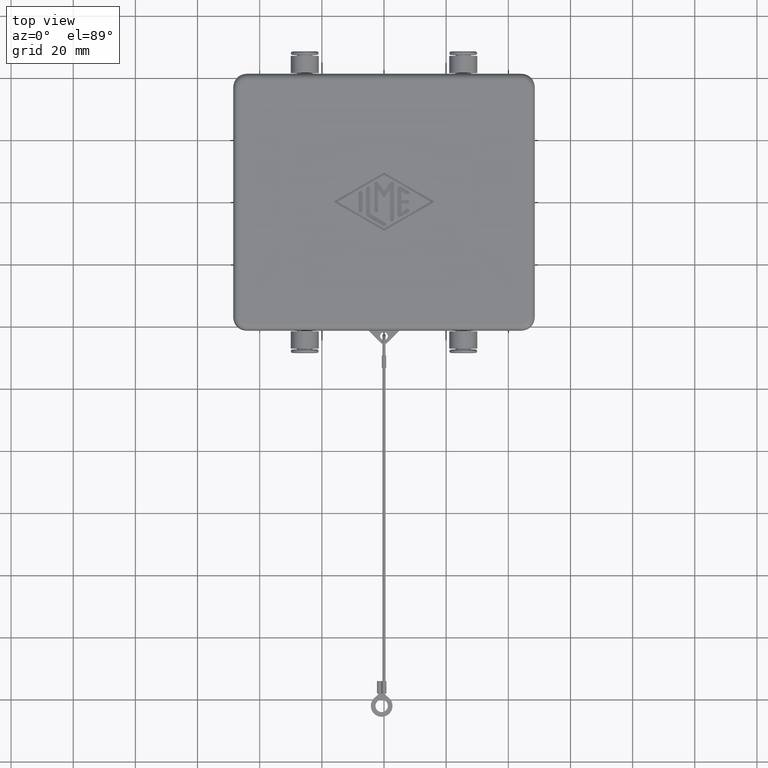
[diagram: clean part render]
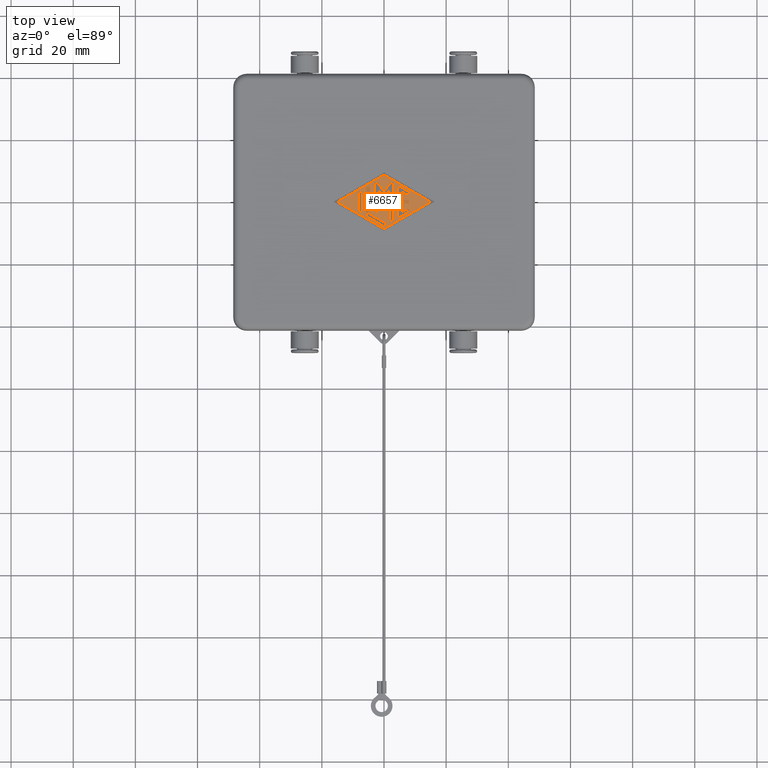
[diagram: same view with one face highlighted and labeled with its STEP entity id]
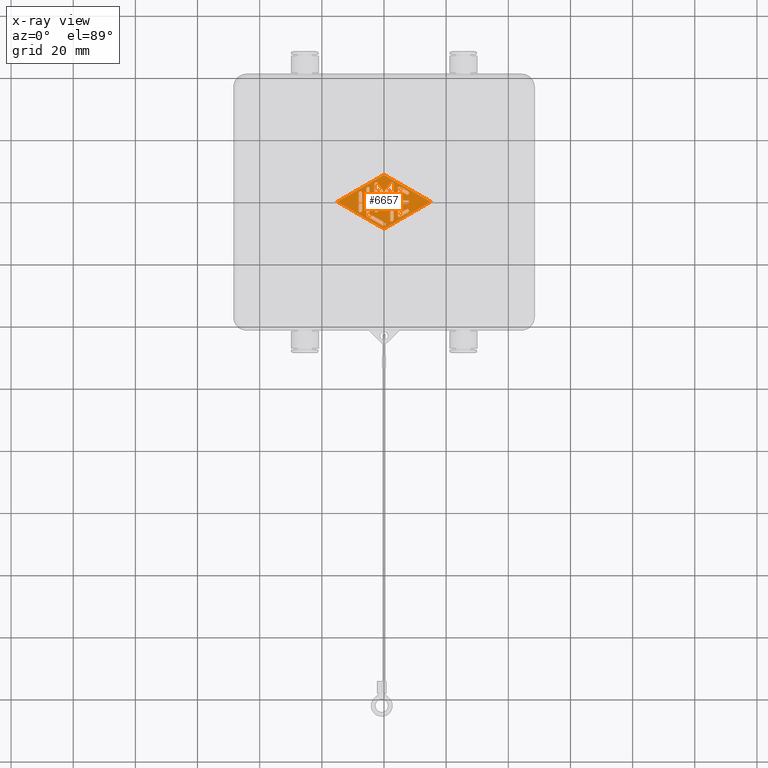
[diagram: x-ray of the same camera — body ghosted, the highlighted face saturated]
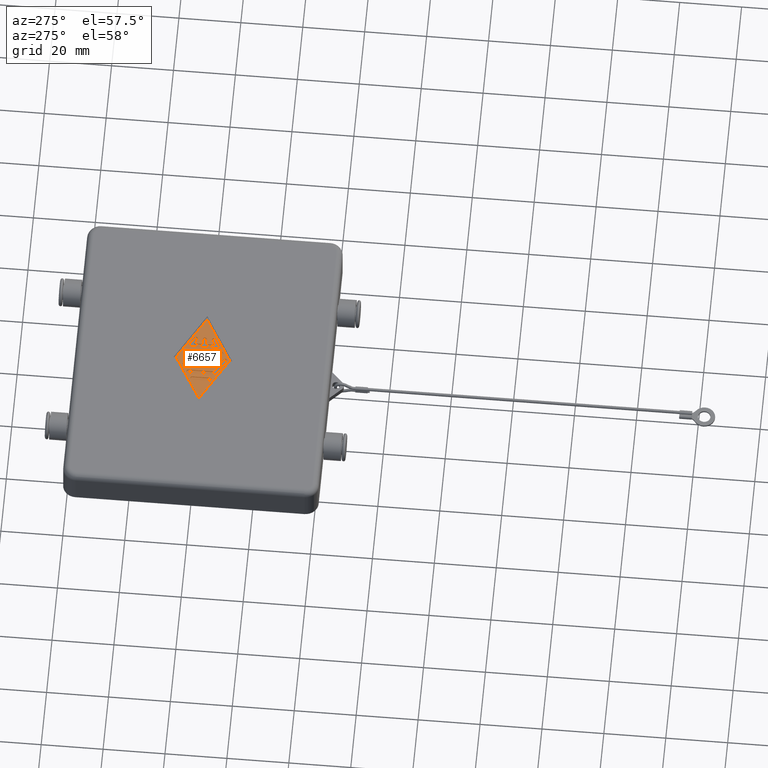
[diagram: same view with one face highlighted and labeled with its STEP entity id]
A machine part, top view. The second image highlights one B-rep face of the part: STEP entity #6657.
The next image is the same camera in x-ray: the body ghosted, the highlighted face saturated — about 0% of this face is hidden behind the body in this view.
A second angle (auxiliary view) of the same face is appended — the face is thin or edge-on in the first view.
In plain terms, the highlighted planar face has unit normal (0, 0, 1).
Its self-contained STEP definition (entity closure, byte-faithful):
#1799=CARTESIAN_POINT('',(4.374999999999995,4.325721487528326,12.000000000000002));
#1800=VERTEX_POINT('',#1799);
#1807=CARTESIAN_POINT('',(4.374999999999995,-4.325721487528320,12.000000000000002));
#1808=VERTEX_POINT('',#1807);
#1809=CARTESIAN_POINT('',(4.374999999999995,-4.325721487528320,12.000000000000002));
#1810=DIRECTION('',(0.0,1.0,0.0));
#1811=VECTOR('',#1810,8.651442975056646);
#1812=LINE('',#1809,#1811);
#1813=EDGE_CURVE('',#1808,#1800,#1812,.T.);
#1839=CARTESIAN_POINT('',(5.312326533430989,-4.867087478808698,12.000000000000002));
#1840=VERTEX_POINT('',#1839);
#1841=CARTESIAN_POINT('',(5.000000000000001,-4.325721487528320,12.000000000000002));
#1842=DIRECTION('',(0.0,0.0,-1.0));
#1843=DIRECTION('',(1.0,0.0,0.0));
#1844=AXIS2_PLACEMENT_3D('',#1841,#1842,#1843);
#1845=CIRCLE('',#1844,0.625000000000000);
#1846=EDGE_CURVE('',#1840,#1808,#1845,.T.);
#1871=CARTESIAN_POINT('',(7.812326533430980,-3.424779786501008,12.000000000000002));
#1872=VERTEX_POINT('',#1871);
#1873=CARTESIAN_POINT('',(7.812326533430980,-3.424779786501008,12.000000000000002));
#1874=DIRECTION('',(-0.866185586048600,-0.499722453489578,0.0));
#1875=VECTOR('',#1874,2.886217503808382);
#1876=LINE('',#1873,#1875);
#1877=EDGE_CURVE('',#1872,#1840,#1876,.T.);
#1903=CARTESIAN_POINT('',(7.187673466569009,-2.342047803940258,12.000000000000002));
#1904=VERTEX_POINT('',#1903);
#1905=CARTESIAN_POINT('',(7.499999999999995,-2.883413795220633,12.000000000000002));
#1906=DIRECTION('',(0.0,0.0,-1.000000000000000));
#1907=DIRECTION('',(-0.499722453489577,0.866185586048601,0.0));
#1908=AXIS2_PLACEMENT_3D('',#1905,#1906,#1907);
#1909=CIRCLE('',#1908,0.625000000000002);
#1910=EDGE_CURVE('',#1904,#1872,#1909,.T.);
#1935=CARTESIAN_POINT('',(5.624999999999995,-3.243590188499308,12.000000000000002));
#1936=VERTEX_POINT('',#1935);
#1937=CARTESIAN_POINT('',(5.624999999999995,-3.243590188499308,12.000000000000002));
#1938=DIRECTION('',(0.866185586048600,0.499722453489578,0.0));
#1939=VECTOR('',#1938,1.804086204779372);
#1940=LINE('',#1937,#1939);
#1941=EDGE_CURVE('',#1936,#1904,#1940,.T.);
#1966=CARTESIAN_POINT('',(5.624999999999995,-0.625000000000001,12.000000000000002));
#1967=VERTEX_POINT('',#1966);
#1968=CARTESIAN_POINT('',(5.624999999999995,-0.625000000000001,12.000000000000002));
#1969=DIRECTION('',(0.0,-1.0,0.0));
#1970=VECTOR('',#1969,2.618590188499306);
#1971=LINE('',#1968,#1970);
#1972=EDGE_CURVE('',#1967,#1936,#1971,.T.);
#1997=CARTESIAN_POINT('',(7.499999999999995,-0.625000000000001,12.000000000000002));
#1998=VERTEX_POINT('',#1997);
#1999=CARTESIAN_POINT('',(7.499999999999995,-0.625000000000001,12.000000000000002));
#2000=DIRECTION('',(-1.0,0.0,0.0));
#2001=VECTOR('',#2000,1.875000000000000);
#2002=LINE('',#1999,#2001);
#2003=EDGE_CURVE('',#1998,#1967,#2002,.T.);
#2029=CARTESIAN_POINT('',(7.499999999999995,0.624999999999999,12.000000000000002));
#2030=VERTEX_POINT('',#2029);
#2031=CARTESIAN_POINT('',(7.499999999999995,-1.312233E-015,12.000000000000002));
#2032=DIRECTION('',(0.0,0.0,-1.0));
#2033=DIRECTION('',(0.0,1.0,0.0));
#2034=AXIS2_PLACEMENT_3D('',#2031,#2032,#2033);
#2035=CIRCLE('',#2034,0.625000000000000);
#2036=EDGE_CURVE('',#2030,#1998,#2035,.T.);
#2061=CARTESIAN_POINT('',(5.624999999999995,0.624999999999996,12.000000000000002));
#2062=VERTEX_POINT('',#2061);
#2063=CARTESIAN_POINT('',(5.624999999999995,0.624999999999996,12.000000000000002));
#2064=DIRECTION('',(1.0,0.0,0.0));
#2065=VECTOR('',#2064,1.875000000000000);
#2066=LINE('',#2063,#2065);
#2067=EDGE_CURVE('',#2062,#2030,#2066,.T.);
#2092=CARTESIAN_POINT('',(5.624999999999995,3.243590188499305,12.000000000000002));
#2093=VERTEX_POINT('',#2092);
#2094=CARTESIAN_POINT('',(5.624999999999995,3.243590188499305,12.000000000000002));
#2095=DIRECTION('',(0.0,-1.0,0.0));
#2096=VECTOR('',#2095,2.618590188499309);
#2097=LINE('',#2094,#2096);
#2098=EDGE_CURVE('',#2093,#2062,#2097,.T.);
#2123=CARTESIAN_POINT('',(7.187673466569010,2.342047803940258,12.000000000000002));
#2124=VERTEX_POINT('',#2123);
#2125=CARTESIAN_POINT('',(7.187673466569010,2.342047803940258,12.000000000000002));
#2126=DIRECTION('',(-0.866185586048600,0.499722453489577,0.0));
#2127=VECTOR('',#2126,1.804086204779372);
#2128=LINE('',#2125,#2127);
#2129=EDGE_CURVE('',#2124,#2093,#2128,.T.);
#2155=CARTESIAN_POINT('',(7.812326533430981,3.424779786501011,12.000000000000002));
#2156=VERTEX_POINT('',#2155);
#2157=CARTESIAN_POINT('',(7.499999999999995,2.883413795220633,12.000000000000002));
#2158=DIRECTION('',(0.0,0.0,-1.0));
#2159=DIRECTION('',(0.499722453489576,0.866185586048601,0.0));
#2160=AXIS2_PLACEMENT_3D('',#2157,#2158,#2159);
#2161=CIRCLE('',#2160,0.625000000000000);
#2162=EDGE_CURVE('',#2156,#2124,#2161,.T.);
#2187=CARTESIAN_POINT('',(5.312326533430981,4.867087478808699,12.000000000000002));
#2188=VERTEX_POINT('',#2187);
#2189=CARTESIAN_POINT('',(5.312326533430981,4.867087478808699,12.000000000000002));
#2190=DIRECTION('',(0.866185586048601,-0.499722453489576,0.0));
#2191=VECTOR('',#2190,2.886217503808390);
#2192=LINE('',#2189,#2191);
#2193=EDGE_CURVE('',#2188,#2156,#2192,.T.);
#2217=CARTESIAN_POINT('',(4.999999999999997,4.325721487528326,12.000000000000002));
#2218=DIRECTION('',(0.0,0.0,-1.0));
#2219=DIRECTION('',(-0.499722453489577,-0.866185586048601,0.0));
#2220=AXIS2_PLACEMENT_3D('',#2217,#2218,#2219);
#2221=CIRCLE('',#2220,0.625000000000000);
#2222=EDGE_CURVE('',#1800,#2188,#2221,.T.);
#2266=CARTESIAN_POINT('',(-7.000000000000004,2.811298410605247,12.000000000000002));
#2267=VERTEX_POINT('',#2266);
#2274=CARTESIAN_POINT('',(-8.250000000000004,2.811298410605247,12.000000000000002));
#2275=VERTEX_POINT('',#2274);
#2276=CARTESIAN_POINT('',(-7.625000000000004,2.811298410605247,12.000000000000002));
#2277=DIRECTION('',(0.0,0.0,-1.0));
#2278=DIRECTION('',(-1.0,0.0,0.0));
#2279=AXIS2_PLACEMENT_3D('',#2276,#2277,#2278);
#2280=CIRCLE('',#2279,0.625000000000000);
#2281=EDGE_CURVE('',#2275,#2267,#2280,.T.);
#2306=CARTESIAN_POINT('',(-8.250000000000004,-2.811298410605247,12.000000000000002));
#2307=VERTEX_POINT('',#2306);
#2308=CARTESIAN_POINT('',(-8.250000000000004,-2.811298410605247,12.000000000000002));
#2309=DIRECTION('',(0.0,1.0,0.0));
#2310=VECTOR('',#2309,5.622596821210494);
#2311=LINE('',#2308,#2310);
#2312=EDGE_CURVE('',#2307,#2275,#2311,.T.);
#2338=CARTESIAN_POINT('',(-7.000000000000004,-2.811298410605247,12.000000000000002));
#2339=VERTEX_POINT('',#2338);
#2340=CARTESIAN_POINT('',(-7.625000000000004,-2.811298410605247,12.000000000000002));
#2341=DIRECTION('',(0.0,0.0,-1.0));
#2342=DIRECTION('',(1.0,0.0,0.0));
#2343=AXIS2_PLACEMENT_3D('',#2340,#2341,#2342);
#2344=CIRCLE('',#2343,0.625000000000000);
#2345=EDGE_CURVE('',#2339,#2307,#2344,.T.);
#2368=CARTESIAN_POINT('',(-7.000000000000004,2.811298410605247,12.000000000000002));
#2369=DIRECTION('',(0.0,-1.0,0.0));
#2370=VECTOR('',#2369,5.622596821210494);
#2371=LINE('',#2368,#2370);
#2372=EDGE_CURVE('',#2267,#2339,#2371,.T.);
#2405=CARTESIAN_POINT('',(-3.193338E-015,-8.653445624047905,12.000000000000002));
#2406=VERTEX_POINT('',#2405);
#2413=CARTESIAN_POINT('',(-14.999305748349697,5.551115E-016,12.000000000000002));
#2414=VERTEX_POINT('',#2413);
#2415=CARTESIAN_POINT('',(-14.999305748349697,5.551115E-016,12.000000000000002));
#2416=DIRECTION('',(0.866185586048600,-0.499722453489577,0.0));
#2417=VECTOR('',#2416,17.316503518344284);
#2418=LINE('',#2415,#2417);
#2419=EDGE_CURVE('',#2414,#2406,#2418,.T.);
#2443=CARTESIAN_POINT('',(14.999305748349691,1.379107E-015,12.000000000000002));
#2444=VERTEX_POINT('',#2443);
#2451=CARTESIAN_POINT('',(-3.193338E-015,-8.653445624047905,12.000000000000002));
#2452=DIRECTION('',(0.866185586048600,0.499722453489577,0.0));
#2453=VECTOR('',#2452,17.316503518344287);
#2454=LINE('',#2451,#2453);
#2455=EDGE_CURVE('',#2406,#2444,#2454,.T.);
#2474=CARTESIAN_POINT('',(-3.193338E-015,8.653445624047901,12.000000000000002));
#2475=VERTEX_POINT('',#2474);
#2482=CARTESIAN_POINT('',(14.999305748349691,1.379107E-015,12.000000000000002));
#2483=DIRECTION('',(-0.866185586048600,0.499722453489577,0.0));
#2484=VECTOR('',#2483,17.316503518344284);
#2485=LINE('',#2482,#2484);
#2486=EDGE_CURVE('',#2444,#2475,#2485,.T.);
#2504=CARTESIAN_POINT('',(-3.193338E-015,8.653445624047901,12.000000000000002));
#2505=DIRECTION('',(-0.866185586048600,-0.499722453489577,0.0));
#2506=VECTOR('',#2505,17.316503518344284);
#2507=LINE('',#2504,#2506);
#2508=EDGE_CURVE('',#2475,#2414,#2507,.T.);
#2671=CARTESIAN_POINT('',(-5.750000000000005,4.253606102912936,12.000000000000002));
#2672=VERTEX_POINT('',#2671);
#2679=CARTESIAN_POINT('',(-5.750000000000003,-4.253606102912952,12.000000000000002));
#2680=VERTEX_POINT('',#2679);
#2681=CARTESIAN_POINT('',(-5.750000000000003,-4.253606102912952,12.000000000000002));
#2682=DIRECTION('',(0.0,1.0,0.0));
#2683=VECTOR('',#2682,8.507212205825887);
#2684=LINE('',#2681,#2683);
#2685=EDGE_CURVE('',#2680,#2672,#2684,.T.);
#2711=CARTESIAN_POINT('',(-5.437326533430992,-4.794972094193331,12.000000000000002));
#2712=VERTEX_POINT('',#2711);
#2713=CARTESIAN_POINT('',(-5.125000000000005,-4.253606102912952,12.000000000000002));
#2714=DIRECTION('',(0.0,0.0,-1.0));
#2715=DIRECTION('',(-1.0,0.0,0.0));
#2716=AXIS2_PLACEMENT_3D('',#2713,#2714,#2715);
#2717=CIRCLE('',#2716,0.625000000000000);
#2718=EDGE_CURVE('',#2712,#2680,#2717,.T.);
#2743=CARTESIAN_POINT('',(-0.312326533430986,-7.751702863424086,12.000000000000002));
#2744=VERTEX_POINT('',#2743);
#2745=CARTESIAN_POINT('',(-0.312326533430986,-7.751702863424086,12.000000000000002));
#2746=DIRECTION('',(-0.866185586048602,0.499722453489575,0.0));
#2747=VECTOR('',#2746,5.916745882807200);
#2748=LINE('',#2745,#2747);
#2749=EDGE_CURVE('',#2744,#2712,#2748,.T.);
#2775=CARTESIAN_POINT('',(0.312326533430988,-6.668970880863334,12.000000000000002));
#2776=VERTEX_POINT('',#2775);
#2777=CARTESIAN_POINT('',(2.120750E-015,-7.210336872143708,12.000000000000002));
#2778=DIRECTION('',(0.0,0.0,-1.000000000000000));
#2779=DIRECTION('',(-0.499722453489577,-0.866185586048601,0.0));
#2780=AXIS2_PLACEMENT_3D('',#2777,#2778,#2779);
#2781=CIRCLE('',#2780,0.624999999999998);
#2782=EDGE_CURVE('',#2776,#2744,#2781,.T.);
#2807=CARTESIAN_POINT('',(-4.500000000000013,-3.892628650037788,12.000000000000002));
#2808=VERTEX_POINT('',#2807);
#2809=CARTESIAN_POINT('',(-4.500000000000013,-3.892628650037788,12.000000000000002));
#2810=DIRECTION('',(0.866185586048603,-0.499722453489573,0.0));
#2811=VECTOR('',#2810,5.555768429932029);
#2812=LINE('',#2809,#2811);
#2813=EDGE_CURVE('',#2808,#2776,#2812,.T.);
#2838=CARTESIAN_POINT('',(-4.500000000000005,4.253606102912936,12.000000000000002));
#2839=VERTEX_POINT('',#2838);
#2840=CARTESIAN_POINT('',(-4.500000000000005,4.253606102912936,12.000000000000002));
#2841=DIRECTION('',(0.0,-1.0,0.0));
#2842=VECTOR('',#2841,8.146234752950724);
#2843=LINE('',#2840,#2842);
#2844=EDGE_CURVE('',#2839,#2808,#2843,.T.);
#2868=CARTESIAN_POINT('',(-5.125000000000005,4.253606102912936,12.000000000000002));
#2869=DIRECTION('',(0.0,0.0,-1.0));
#2870=DIRECTION('',(1.0,0.0,0.0));
#2871=AXIS2_PLACEMENT_3D('',#2868,#2869,#2870);
#2872=CIRCLE('',#2871,0.625000000000000);
#2873=EDGE_CURVE('',#2672,#2839,#2872,.T.);
#2909=CARTESIAN_POINT('',(-3.193338E-015,1.250000000000000,12.000000000000002));
#2910=VERTEX_POINT('',#2909);
#2917=CARTESIAN_POINT('',(1.874999999999996,3.839299689476821,12.000000000000002));
#2918=VERTEX_POINT('',#2917);
#2919=CARTESIAN_POINT('',(1.874999999999996,3.839299689476821,12.000000000000002));
#2920=DIRECTION('',(-0.586507735518138,-0.809943625308197,0.0));
#2921=VECTOR('',#2920,3.196888781600754);
#2922=LINE('',#2919,#2921);
#2923=EDGE_CURVE('',#2918,#2910,#2922,.T.);
#2948=CARTESIAN_POINT('',(1.874999999999996,-5.768029179836017,12.000000000000002));
#2949=VERTEX_POINT('',#2948);
#2950=CARTESIAN_POINT('',(1.874999999999996,-5.768029179836017,12.000000000000002));
#2951=DIRECTION('',(0.0,1.0,0.0));
#2952=VECTOR('',#2951,9.607328869312838);
#2953=LINE('',#2950,#2952);
#2954=EDGE_CURVE('',#2949,#2918,#2953,.T.);
#2980=CARTESIAN_POINT('',(3.124999999999995,-5.768029179836017,12.000000000000002));
#2981=VERTEX_POINT('',#2980);
#2982=CARTESIAN_POINT('',(2.499999999999995,-5.768029179836017,12.000000000000002));
#2983=DIRECTION('',(0.0,0.0,-1.0));
#2984=DIRECTION('',(-1.0,0.0,0.0));
#2985=AXIS2_PLACEMENT_3D('',#2982,#2983,#2984);
#2986=CIRCLE('',#2985,0.625000000000000);
#2987=EDGE_CURVE('',#2981,#2949,#2986,.T.);
#3012=CARTESIAN_POINT('',(3.124999999999995,5.768029179836017,12.000000000000002));
#3013=VERTEX_POINT('',#3012);
#3014=CARTESIAN_POINT('',(3.124999999999995,5.768029179836017,12.000000000000002));
#3015=DIRECTION('',(0.0,-1.0,0.0));
#3016=VECTOR('',#3015,11.536058359672033);
#3017=LINE('',#3014,#3016);
#3018=EDGE_CURVE('',#3013,#2981,#3017,.T.);
#3044=CARTESIAN_POINT('',(1.993785234182371,6.134596514534854,12.000000000000002));
#3045=VERTEX_POINT('',#3044);
#3046=CARTESIAN_POINT('',(2.499999999999995,5.768029179836017,12.000000000000002));
#3047=DIRECTION('',(0.0,0.0,-1.0));
#3048=DIRECTION('',(1.0,0.0,0.0));
#3049=AXIS2_PLACEMENT_3D('',#3046,#3047,#3048);
#3050=CIRCLE('',#3049,0.625000000000000);
#3051=EDGE_CURVE('',#3045,#3013,#3050,.T.);
#3076=CARTESIAN_POINT('',(-3.193338E-015,3.381259187733842,12.000000000000002));
#3077=VERTEX_POINT('',#3076);
#3078=CARTESIAN_POINT('',(-3.193338E-015,3.381259187733842,12.000000000000002));
#3079=DIRECTION('',(0.586507735518138,0.809943625308197,0.0));
#3080=VECTOR('',#3079,3.399418478975398);
#3081=LINE('',#3078,#3080);
#3082=EDGE_CURVE('',#3077,#3045,#3081,.T.);
#3107=CARTESIAN_POINT('',(-1.993785234182382,6.134596514534851,12.000000000000002));
#3108=VERTEX_POINT('',#3107);
#3109=CARTESIAN_POINT('',(-1.993785234182382,6.134596514534851,12.000000000000002));
#3110=DIRECTION('',(0.586507735518140,-0.809943625308196,0.0));
#3111=VECTOR('',#3110,3.399418478975399);
#3112=LINE('',#3109,#3111);
#3113=EDGE_CURVE('',#3108,#3077,#3112,.T.);
#3139=CARTESIAN_POINT('',(-3.125000000000005,5.768029179836014,12.000000000000002));
#3140=VERTEX_POINT('',#3139);
#3141=CARTESIAN_POINT('',(-2.500000000000005,5.768029179836014,12.000000000000002));
#3142=DIRECTION('',(0.0,0.0,-1.0));
#3143=DIRECTION('',(0.809943625308196,0.586507735518140,0.0));
#3144=AXIS2_PLACEMENT_3D('',#3141,#3142,#3143);
#3145=CIRCLE('',#3144,0.625000000000000);
#3146=EDGE_CURVE('',#3140,#3108,#3145,.T.);
#3171=CARTESIAN_POINT('',(-3.125000000000005,-2.811298410605247,12.000000000000002));
#3172=VERTEX_POINT('',#3171);
#3173=CARTESIAN_POINT('',(-3.125000000000005,-2.811298410605247,12.000000000000002));
#3174=DIRECTION('',(0.0,1.0,0.0));
#3175=VECTOR('',#3174,8.579327590441260);
#3176=LINE('',#3173,#3175);
#3177=EDGE_CURVE('',#3172,#3140,#3176,.T.);
#3203=CARTESIAN_POINT('',(-1.875000000000006,-2.811298410605247,12.000000000000002));
#3204=VERTEX_POINT('',#3203);
#3205=CARTESIAN_POINT('',(-2.500000000000005,-2.811298410605247,12.000000000000002));
#3206=DIRECTION('',(0.0,0.0,-1.0));
#3207=DIRECTION('',(-1.0,0.0,0.0));
#3208=AXIS2_PLACEMENT_3D('',#3205,#3206,#3207);
#3209=CIRCLE('',#3208,0.624999999999999);
#3210=EDGE_CURVE('',#3204,#3172,#3209,.T.);
#3235=CARTESIAN_POINT('',(-1.875000000000007,3.839299689476817,12.000000000000002));
#3236=VERTEX_POINT('',#3235);
#3237=CARTESIAN_POINT('',(-1.875000000000007,3.839299689476817,12.000000000000002));
#3238=DIRECTION('',(0.0,-1.0,0.0));
#3239=VECTOR('',#3238,6.650598100082064);
#3240=LINE('',#3237,#3239);
#3241=EDGE_CURVE('',#3236,#3204,#3240,.T.);
#3264=CARTESIAN_POINT('',(-3.193338E-015,1.250000000000000,12.000000000000002));
#3265=DIRECTION('',(-0.586507735518140,0.809943625308196,0.0));
#3266=VECTOR('',#3265,3.196888781600754);
#3267=LINE('',#3264,#3266);
#3268=EDGE_CURVE('',#2910,#3236,#3267,.T.);
#6601=CARTESIAN_POINT('',(0.0,5.566578E-016,12.000000000000002));
#6602=DIRECTION('',(0.0,0.0,1.0));
#6603=DIRECTION('',(1.0,0.0,0.0));
#6604=AXIS2_PLACEMENT_3D('',#6601,#6602,#6603);
#6605=PLANE('',#6604);
#6606=ORIENTED_EDGE('',*,*,#2419,.T.);
#6607=ORIENTED_EDGE('',*,*,#2455,.T.);
#6608=ORIENTED_EDGE('',*,*,#2486,.T.);
#6609=ORIENTED_EDGE('',*,*,#2508,.T.);
#6610=EDGE_LOOP('',(#6606,#6607,#6608,#6609));
#6611=FACE_OUTER_BOUND('',#6610,.T.);
#6612=ORIENTED_EDGE('',*,*,#1813,.T.);
#6613=ORIENTED_EDGE('',*,*,#2222,.T.);
#6614=ORIENTED_EDGE('',*,*,#2193,.T.);
#6615=ORIENTED_EDGE('',*,*,#2162,.T.);
#6616=ORIENTED_EDGE('',*,*,#2129,.T.);
#6617=ORIENTED_EDGE('',*,*,#2098,.T.);
#6618=ORIENTED_EDGE('',*,*,#2067,.T.);
#6619=ORIENTED_EDGE('',*,*,#2036,.T.);
#6620=ORIENTED_EDGE('',*,*,#2003,.T.);
#6621=ORIENTED_EDGE('',*,*,#1972,.T.);
#6622=ORIENTED_EDGE('',*,*,#1941,.T.);
#6623=ORIENTED_EDGE('',*,*,#1910,.T.);
#6624=ORIENTED_EDGE('',*,*,#1877,.T.);
#6625=ORIENTED_EDGE('',*,*,#1846,.T.);
#6626=EDGE_LOOP('',(#6612,#6613,#6614,#6615,#6616,#6617,#6618,#6619,#6620,#6621,#6622,#6623,#6624,#6625));
#6627=FACE_BOUND('',#6626,.T.);
#6628=ORIENTED_EDGE('',*,*,#2281,.T.);
#6629=ORIENTED_EDGE('',*,*,#2372,.T.);
#6630=ORIENTED_EDGE('',*,*,#2345,.T.);
#6631=ORIENTED_EDGE('',*,*,#2312,.T.);
#6632=EDGE_LOOP('',(#6628,#6629,#6630,#6631));
#6633=FACE_BOUND('',#6632,.T.);
#6634=ORIENTED_EDGE('',*,*,#2685,.T.);
#6635=ORIENTED_EDGE('',*,*,#2873,.T.);
#6636=ORIENTED_EDGE('',*,*,#2844,.T.);
#6637=ORIENTED_EDGE('',*,*,#2813,.T.);
#6638=ORIENTED_EDGE('',*,*,#2782,.T.);
#6639=ORIENTED_EDGE('',*,*,#2749,.T.);
#6640=ORIENTED_EDGE('',*,*,#2718,.T.);
#6641=EDGE_LOOP('',(#6634,#6635,#6636,#6637,#6638,#6639,#6640));
#6642=FACE_BOUND('',#6641,.T.);
#6643=ORIENTED_EDGE('',*,*,#2923,.T.);
#6644=ORIENTED_EDGE('',*,*,#3268,.T.);
#6645=ORIENTED_EDGE('',*,*,#3241,.T.);
#6646=ORIENTED_EDGE('',*,*,#3210,.T.);
#6647=ORIENTED_EDGE('',*,*,#3177,.T.);
#6648=ORIENTED_EDGE('',*,*,#3146,.T.);
#6649=ORIENTED_EDGE('',*,*,#3113,.T.);
#6650=ORIENTED_EDGE('',*,*,#3082,.T.);
#6651=ORIENTED_EDGE('',*,*,#3051,.T.);
#6652=ORIENTED_EDGE('',*,*,#3018,.T.);
#6653=ORIENTED_EDGE('',*,*,#2987,.T.);
#6654=ORIENTED_EDGE('',*,*,#2954,.T.);
#6655=EDGE_LOOP('',(#6643,#6644,#6645,#6646,#6647,#6648,#6649,#6650,#6651,#6652,#6653,#6654));
#6656=FACE_BOUND('',#6655,.T.);
#6657=ADVANCED_FACE('',(#6611,#6627,#6633,#6642,#6656),#6605,.T.);